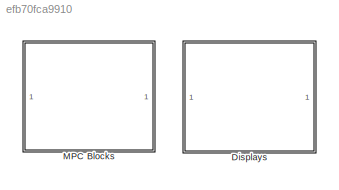
MODEL slx_efb70fca9910
KIND library
CONFIG AbsTol = auto
CONFIG EnableMultiTasking = on
CONFIG FixedStep = auto
CONFIG MaxStep = auto
CONFIG MinStep = auto
CONFIG RelTol = 1e-3
CONFIG SampleTimeConstraint = Unconstrained
CONFIG SolverName = ode45
CONFIG StartTime = 0.0
CONFIG StopTime = 10.0
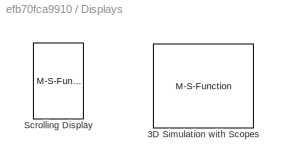
BLOCK [SubSystem] Displays
BLOCK [M-S-Function] Displays/3D Simulation with Scopes
  DestroyFcn = block = get_param(gcbh, 'Parent');       \nFigHandle = get_param(block, 'UserData');\nif ~isempty(FigHandle)                   \n  close(FigHandle);                      \nend
  FunctionName = sfun_3Dwgraph
  Parameters = vrw,titles,ylims,tlim,viden
BLOCK [M-S-Function] Displays/Scrolling Display
  FunctionName = sfun_scroll
  Parameters = Ts,Frame_Size,Update_Delay,y_lim,setp
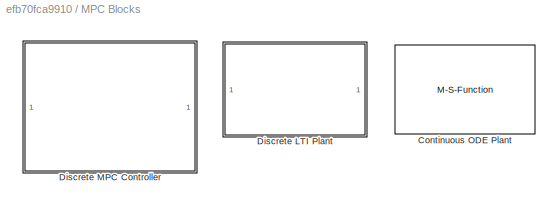
BLOCK [SubSystem] MPC Blocks
BLOCK [M-S-Function] MPC Blocks/Continuous ODE Plant
  FunctionName = sfun_jNL
  Parameters = jNLObj
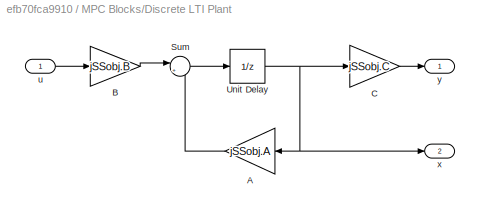
BLOCK [SubSystem] MPC Blocks/Discrete LTI Plant
BLOCK [Gain] MPC Blocks/Discrete LTI Plant/A
  Gain = jSSobj.A
  Multiplication = Matrix(K*u)
BLOCK [Gain] MPC Blocks/Discrete LTI Plant/B
  Gain = jSSobj.B
  Multiplication = Matrix(K*u)
BLOCK [Gain] MPC Blocks/Discrete LTI Plant/C
  Gain = jSSobj.C
  Multiplication = Matrix(K*u)
BLOCK [Sum] MPC Blocks/Discrete LTI Plant/Sum
  Inputs = |++
BLOCK [UnitDelay] MPC Blocks/Discrete LTI Plant/Unit Delay
  HasFrameUpgradeWarning = on
  InitialCondition = jSSobj.x0
  SampleTime = -1
BLOCK [Inport] MPC Blocks/Discrete LTI Plant/u
BLOCK [Outport] MPC Blocks/Discrete LTI Plant/x
  Port = 2
BLOCK [Outport] MPC Blocks/Discrete LTI Plant/y
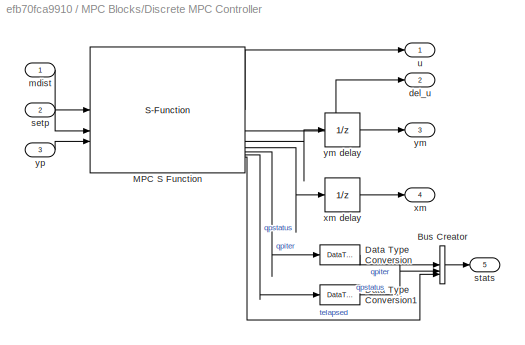
BLOCK [SubSystem] MPC Blocks/Discrete MPC Controller
BLOCK [BusCreator] MPC Blocks/Discrete MPC Controller/Bus Creator
  DisplayOption = bar
  InheritFromInputs = on
  Inputs = 3
BLOCK [DataTypeConversion] MPC Blocks/Discrete MPC Controller/Data Type Conversion
  OutDataTypeStr = double
  RndMeth = Floor
  SaturateOnIntegerOverflow = off
BLOCK [DataTypeConversion] MPC Blocks/Discrete MPC Controller/Data Type Conversion1
  OutDataTypeStr = double
  RndMeth = Floor
  SaturateOnIntegerOverflow = off
BLOCK [S-Function] MPC Blocks/Discrete MPC Controller/MPC S Function
  EnableBusSupport = off
  FunctionName = jMPC_sfcn
  Parameters = SIMJMPC.Model.A,SIMJMPC.Model.B,SIMJMPC.Model.Ts,SIMJMPC.Np,SIMJMPC.Nb,SIMJMPC.pred,SIMJMPC.sizes,SIMJMPC.state_est,SIMJMPC.QP,SIMJMPC.index,SIMJMPC.constraints,SIMJMPC.initial,SIMJMPC.mpcopts,SIMJMPC.lin
  SFcnIsStateOwnerBlock = off
  SFunctionDeploymentMode = off
BLOCK [Outport] MPC Blocks/Discrete MPC Controller/del_u
  Port = 2
BLOCK [Inport] MPC Blocks/Discrete MPC Controller/mdist
BLOCK [Inport] MPC Blocks/Discrete MPC Controller/setp
  Port = 2
BLOCK [Outport] MPC Blocks/Discrete MPC Controller/stats
  Port = 5
BLOCK [Outport] MPC Blocks/Discrete MPC Controller/u
BLOCK [Outport] MPC Blocks/Discrete MPC Controller/xm
  Port = 4
BLOCK [UnitDelay] MPC Blocks/Discrete MPC Controller/xm delay
  HasFrameUpgradeWarning = on
  InitialCondition = SIMJMPC.initial.xm+SIMJMPC.lin.x_op
  SampleTime = -1
BLOCK [Outport] MPC Blocks/Discrete MPC Controller/ym
  Port = 3
BLOCK [UnitDelay] MPC Blocks/Discrete MPC Controller/ym delay
  HasFrameUpgradeWarning = on
  InitialCondition = SIMJMPC.initial.ym+SIMJMPC.lin.y_op_full
  SampleTime = -1
BLOCK [Inport] MPC Blocks/Discrete MPC Controller/yp
  Port = 3
LINE MPC Blocks/Discrete LTI Plant/A:1 -> MPC Blocks/Discrete LTI Plant/Sum:2
LINE MPC Blocks/Discrete LTI Plant/B:1 -> MPC Blocks/Discrete LTI Plant/Sum:1
LINE MPC Blocks/Discrete LTI Plant/C:1 -> MPC Blocks/Discrete LTI Plant/y:1
LINE MPC Blocks/Discrete LTI Plant/Sum:1 -> MPC Blocks/Discrete LTI Plant/Unit Delay:1
NET MPC Blocks/Discrete LTI Plant/Unit Delay:1 -> MPC Blocks/Discrete LTI Plant/A:1, MPC Blocks/Discrete LTI Plant/C:1, MPC Blocks/Discrete LTI Plant/x:1
LINE MPC Blocks/Discrete LTI Plant/u:1 -> MPC Blocks/Discrete LTI Plant/B:1
LINE MPC Blocks/Discrete MPC Controller/Bus Creator:1 -> MPC Blocks/Discrete MPC Controller/stats:1
LINE MPC Blocks/Discrete MPC Controller/Data Type Conversion1:1 -> MPC Blocks/Discrete MPC Controller/Bus Creator:2
LINE MPC Blocks/Discrete MPC Controller/Data Type Conversion:1 -> MPC Blocks/Discrete MPC Controller/Bus Creator:1
LINE MPC Blocks/Discrete MPC Controller/MPC S Function:1 -> MPC Blocks/Discrete MPC Controller/u:1
LINE MPC Blocks/Discrete MPC Controller/MPC S Function:2 -> MPC Blocks/Discrete MPC Controller/del_u:1
LINE MPC Blocks/Discrete MPC Controller/MPC S Function:3 -> MPC Blocks/Discrete MPC Controller/ym delay:1
LINE MPC Blocks/Discrete MPC Controller/MPC S Function:4 -> MPC Blocks/Discrete MPC Controller/xm delay:1
LINE MPC Blocks/Discrete MPC Controller/MPC S Function:5 -> MPC Blocks/Discrete MPC Controller/Data Type Conversion:1
LINE MPC Blocks/Discrete MPC Controller/MPC S Function:6 -> MPC Blocks/Discrete MPC Controller/Data Type Conversion1:1
LINE MPC Blocks/Discrete MPC Controller/MPC S Function:7 -> MPC Blocks/Discrete MPC Controller/Bus Creator:3
LINE MPC Blocks/Discrete MPC Controller/mdist:1 -> MPC Blocks/Discrete MPC Controller/MPC S Function:1
LINE MPC Blocks/Discrete MPC Controller/setp:1 -> MPC Blocks/Discrete MPC Controller/MPC S Function:2
LINE MPC Blocks/Discrete MPC Controller/xm delay:1 -> MPC Blocks/Discrete MPC Controller/xm:1
LINE MPC Blocks/Discrete MPC Controller/ym delay:1 -> MPC Blocks/Discrete MPC Controller/ym:1
LINE MPC Blocks/Discrete MPC Controller/yp:1 -> MPC Blocks/Discrete MPC Controller/MPC S Function:3
note: NET lines group one-source signal fan-out (src -> all destinations, sorted); 1:1 wires keep LINE
